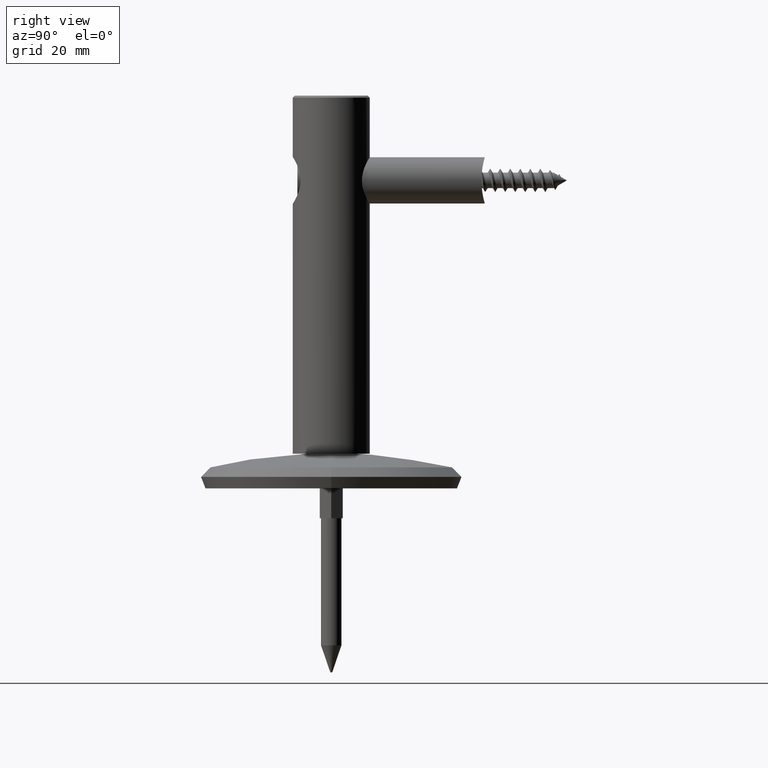
[diagram: clean part render]
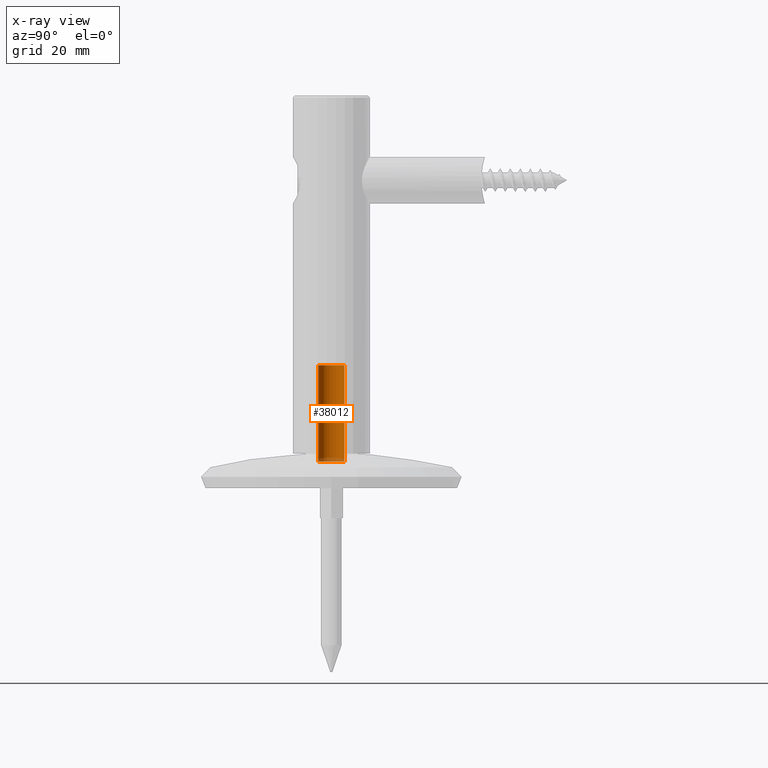
[diagram: x-ray — body ghosted, one internal face saturated and labeled with its STEP entity id]
A machine part, right view, then the same camera in x-ray: the body is ghosted and one INTERNAL B-rep face — a face not visible from any outside direction — is saturated and labeled: STEP entity #38012.
In plain terms, the highlighted cylindrical surface (edge-blend (fillet) strip) has radius 3.4 mm, axis along (-0, -0, -1).
Its self-contained STEP definition (entity closure, byte-faithful):
#2205 = CARTESIAN_POINT ( 'NONE',  ( 4.163799117100994150E-16, -3.399999999999993694, 25.00000000000000000 ) ) ;
#3150 = CARTESIAN_POINT ( 'NONE',  ( 0.000000000000000000, 0.000000000000000000, 0.000000000000000000 ) ) ;
#3289 = DIRECTION ( 'NONE',  ( 0.000000000000000000, 1.000000000000000000, -9.130123557772669567E-18 ) ) ;
#3475 = CARTESIAN_POINT ( 'NONE',  ( 4.163799117100999080E-16, -3.399999999999998135, 1.902465039855842359E-16 ) ) ;
#3956 = CARTESIAN_POINT ( 'NONE',  ( 0.000000000000000000, 2.282530889443167515E-16, 25.00000000000000000 ) ) ;
#6777 = DIRECTION ( 'NONE',  ( -0.000000000000000000, -9.130123557772669567E-18, -1.000000000000000000 ) ) ;
#8661 = CIRCLE ( 'NONE', #19437, 3.399999999999994138 ) ;
#8768 = VERTEX_POINT ( 'NONE', #40276 ) ;
#9604 = FACE_OUTER_BOUND ( 'NONE', #17681, .T. ) ;
#11106 = CYLINDRICAL_SURFACE ( 'NONE', #22537, 3.399999999999996358 ) ;
#11144 = VECTOR ( 'NONE', #25319, 1000.000000000000000 ) ;
#11952 = ORIENTED_EDGE ( 'NONE', *, *, #12106, .T. ) ;
#12106 = EDGE_CURVE ( 'NONE', #29771, #39409, #42377, .T. ) ;
#12651 = VECTOR ( 'NONE', #15867, 1000.000000000000000 ) ;
#15867 = DIRECTION ( 'NONE',  ( -0.000000000000000000, -9.130123557772669567E-18, -1.000000000000000000 ) ) ;
#17486 = ORIENTED_EDGE ( 'NONE', *, *, #37441, .F. ) ;
#17681 = EDGE_LOOP ( 'NONE', ( #27130, #25013, #11952, #17486 ) ) ;
#19437 = AXIS2_PLACEMENT_3D ( 'NONE', #3956, #20717, #27079 ) ;
#20717 = DIRECTION ( 'NONE',  ( -0.000000000000000000, -9.130123557772669567E-18, -1.000000000000000000 ) ) ;
#21557 = VERTEX_POINT ( 'NONE', #2205 ) ;
#22537 = AXIS2_PLACEMENT_3D ( 'NONE', #3150, #6777, #3289 ) ;
#23527 = LINE ( 'NONE', #32685, #12651 ) ;
#25013 = ORIENTED_EDGE ( 'NONE', *, *, #39321, .T. ) ;
#25319 = DIRECTION ( 'NONE',  ( -0.000000000000000000, -9.130123557772669567E-18, -1.000000000000000000 ) ) ;
#26169 = CARTESIAN_POINT ( 'NONE',  ( 0.000000000000000000, 1.453552956810010289E-33, 1.592040838891571914E-16 ) ) ;
#27079 = DIRECTION ( 'NONE',  ( 0.000000000000000000, 1.000000000000000000, 0.000000000000000000 ) ) ;
#27130 = ORIENTED_EDGE ( 'NONE', *, *, #34671, .F. ) ;
#28758 = CARTESIAN_POINT ( 'NONE',  ( 0.000000000000000000, 3.399999999999998579, 1.281616637927301223E-16 ) ) ;
#29771 = VERTEX_POINT ( 'NONE', #3475 ) ;
#29930 = AXIS2_PLACEMENT_3D ( 'NONE', #26169, #32862, #36219 ) ;
#32285 = CARTESIAN_POINT ( 'NONE',  ( 0.000000000000000000, 3.399999999999996358, -3.104242009642704448E-17 ) ) ;
#32685 = CARTESIAN_POINT ( 'NONE',  ( 4.163799117100996615E-16, -3.399999999999996358, 3.104242009642704448E-17 ) ) ;
#32862 = DIRECTION ( 'NONE',  ( -0.000000000000000000, -9.130123557772669567E-18, -1.000000000000000000 ) ) ;
#34671 = EDGE_CURVE ( 'NONE', #21557, #8768, #8661, .T. ) ;
#34987 = LINE ( 'NONE', #32285, #11144 ) ;
#36219 = DIRECTION ( 'NONE',  ( 0.000000000000000000, 1.000000000000000000, -9.130123557772669567E-18 ) ) ;
#37441 = EDGE_CURVE ( 'NONE', #8768, #39409, #34987, .T. ) ;
#38012 = ADVANCED_FACE ( 'NONE', ( #9604 ), #11106, .F. ) ;
#39321 = EDGE_CURVE ( 'NONE', #21557, #29771, #23527, .T. ) ;
#39409 = VERTEX_POINT ( 'NONE', #28758 ) ;
#40276 = CARTESIAN_POINT ( 'NONE',  ( 0.000000000000000000, 3.399999999999994582, 25.00000000000000000 ) ) ;
#42377 = CIRCLE ( 'NONE', #29930, 3.399999999999998579 ) ;